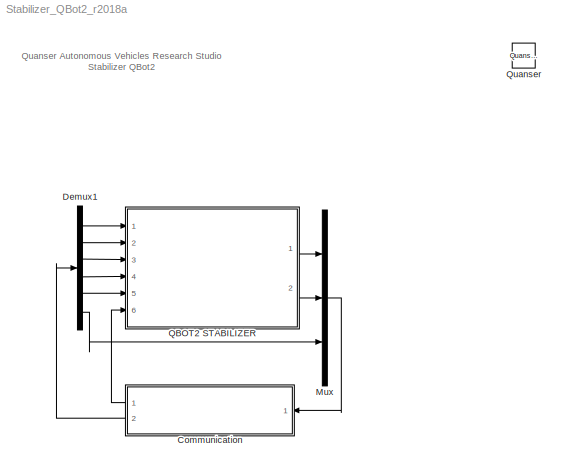
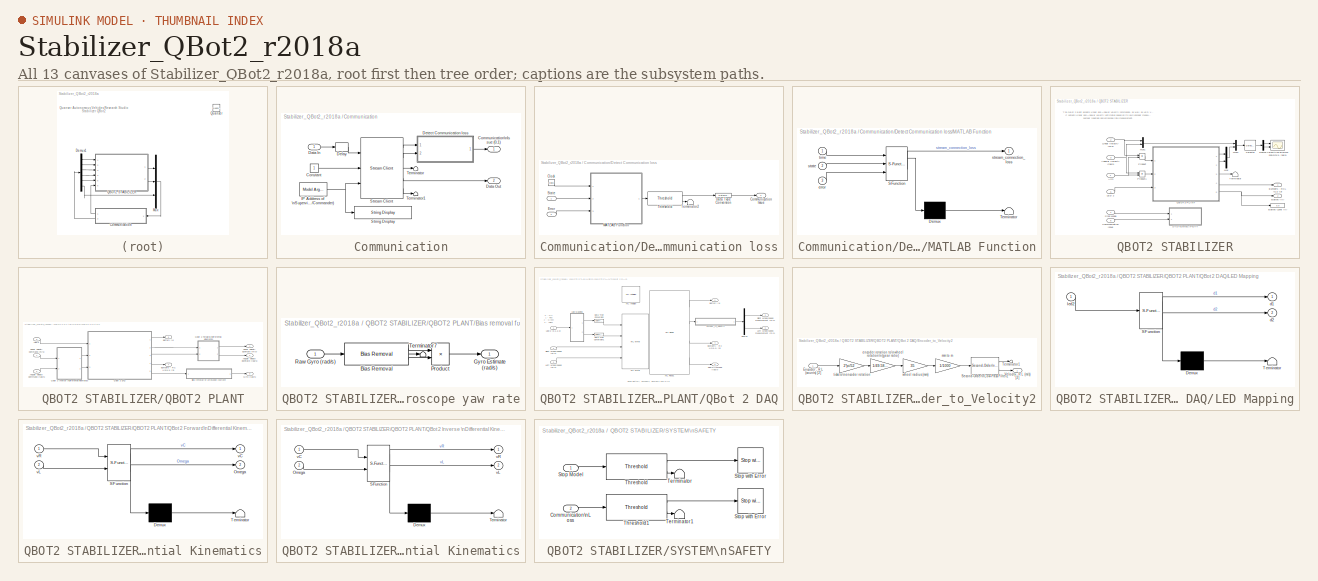
[diagram: thumbnail index - all 13 canvases of the model, root first then tree order]
MODEL Stabilizer_QBot2_r2018a
KIND model
BLOCK [SubSystem] Communication
  Ports = [1, 2]
  RequestExecContextInheritance = off
  SID = 394
BLOCK [Outport] Communication/Communication\nIssue (0,1)
  SID = 6540
  VectorParamsAs1DForOutWhenUnconnected = off
BLOCK [Constant] Communication/Constant
  SID = 2649
BLOCK [Inport] Communication/Data In
  SID = 6543
BLOCK [Outport] Communication/Data Out
  Port = 2
  SID = 6542
  VectorParamsAs1DForOutWhenUnconnected = off
BLOCK [Delay] Communication/Delay
  DelayLength = 1
  InputPortMap = u0
  Ports = [1, 1]
  SID = 404
BLOCK [SubSystem] Communication/Detect Communication loss
  Ports = [2, 1]
  RequestExecContextInheritance = off
  SID = 6556
BLOCK [Clock] Communication/Detect Communication loss/Clock
  SID = 6476
BLOCK [Outport] Communication/Detect Communication loss/Communication Issue
  SID = 6560
  VectorParamsAs1DForOutWhenUnconnected = off
BLOCK [DataTypeConversion] Communication/Detect Communication loss/Data Type Conversion
  RndMeth = Floor
  SID = 5201
  SaturateOnIntegerOverflow = off
BLOCK [Inport] Communication/Detect Communication loss/Error
  Port = 2
  SID = 6558
BLOCK [SubSystem] Communication/Detect Communication loss/MATLAB Function
  ErrorFcn = Stateflow.Translate.translate
  PermitHierarchicalResolution = ExplicitOnly
  Ports = [3, 1]
  RequestExecContextInheritance = off
  SFBlockType = MATLAB Function
  SID = 6473
  TreatAsAtomicUnit = on
BLOCK [Demux] Communication/Detect Communication loss/MATLAB Function/ Demux 
  Outputs = 1
  Ports = [1, 1]
  SID = 6473::35
BLOCK [S-Function] Communication/Detect Communication loss/MATLAB Function/ SFunction 
  EnableBusSupport = off
  FunctionName = sf_sfun
  PortCounts = [3 2]
  Ports = [3, 2]
  SFcnIsStateOwnerBlock = off
  SFunctionDeploymentMode = off
  SID = 6473::34
  Tag = Stateflow S-Function Stabilizer_QBot2_r2018a 3
BLOCK [Terminator] Communication/Detect Communication loss/MATLAB Function/ Terminator 
  SID = 6473::36
BLOCK [Inport] Communication/Detect Communication loss/MATLAB Function/error
  Port = 3
  SID = 6473::23
BLOCK [Inport] Communication/Detect Communication loss/MATLAB Function/state
  Port = 2
  SID = 6473::22
BLOCK [Outport] Communication/Detect Communication loss/MATLAB Function/stream_connection_loss
  SID = 6473::5
  VectorParamsAs1DForOutWhenUnconnected = off
BLOCK [Inport] Communication/Detect Communication loss/MATLAB Function/time
  SID = 6473::1
BLOCK [Inport] Communication/Detect Communication loss/State
  SID = 6557
BLOCK [Terminator] Communication/Detect Communication loss/Terminator2
  SID = 5193
BLOCK [Reference] Communication/Detect Communication loss/Threshold  REF=quarc_library/Discontinuities/Threshold
  Ports = [1, 2]
  RTWMemSecDataConstants = Inherit from model
  RTWMemSecDataInternal = Inherit from model
  RTWMemSecDataParameters = Inherit from model
  RTWMemSecFuncExecute = Inherit from model
  RTWMemSecFuncInitTerm = Inherit from model
  SID = 5195
  SourceBlock = quarc_library/Discontinuities/Threshold
  SourceProductName = QUARC Targets
  SourceType = Threshold
  duration = 0.1
  operator = >=
  param_src = Specify via dialog
  threshold = 0.5
BLOCK [Reference] Communication/IP Address of \nSupervisory Model\n(Mission Operator//Commander)  REF=quarc_library/Sources/Signals/Model Argument
  AttributesFormatString = (-%<argument_name>)
  MultiThreadCoSim = auto
  Ports = [0, 1]
  SID = 5177
  SourceBlock = quarc_library/Sources/Signals/Model Argument
  SourceProductName = QUARC Targets
  SourceType = Model Argument
  argument_name = URI_Host
  data_type = char
  data_type_mode = Specify via dialog
  default_value = 0
  has_value = on
  max_length = 80
  variable_size = off
BLOCK [Reference] Communication/Stream Client  REF=quarc_library/Communications/Basic/Stream Client
  MultiThreadCoSim = auto
  Ports = [3, 5]
  SID = 410
  SourceBlock = quarc_library/Communications/Basic/Stream Client
  SourceProductName = The database <userpath><path> is locked, or a table in the database is locked. (database is locked)
  SourceType = Stream Client
  active = off
  apply_uri_to_all_configs = on
  byte_order = little endian (Intel - LSB first)
  data_type = Inherited via back propagation
  default_value = zeros(1,6)
  implementation = Use blocking I/O in a separate thread
  max_dimensions = -1
  optimization = Minimum latency
  receive_buffer_size = 1460
  receive_dimensions = off
  receive_fifo_size = 1
  receive_options = Receive most recent data
  receive_priority = 0
  sample_time = qc_get_step_size
  send_buffer_size = 1460
  send_dimensions = off
  send_fifo_size = 1
  send_options = Send most recent data
  send_priority = 0
  type_expr = BusObject
  uri = tcpip://localhost:18999
  uri_source = External input port
BLOCK [Reference] Communication/String Display  REF=quarc_library/Strings/String Display
  MultiThreadCoSim = auto
  Ports = [1]
  SID = 5178
  SourceBlock = quarc_library/Strings/String Display
  SourceProductName = QUARC Targets
  SourceType = String Display
  alignment = center
  display_mode = Single line
  sample_time = -1
  use_new = off
BLOCK [Terminator] Communication/Terminator
  SID = 411
BLOCK [Terminator] Communication/Terminator1
  SID = 5205
BLOCK [Demux] Demux1
  Outputs = 6
  Ports = [1, 6]
  SID = 405
BLOCK [Mux] Mux
  DisplayOption = bar
  Inputs = 3
  Ports = [3, 1]
  SID = 7887
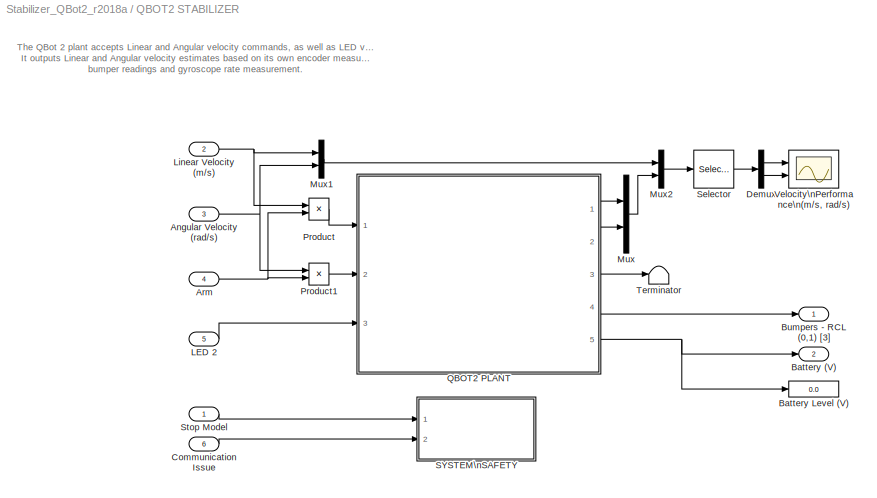
BLOCK [SubSystem] QBOT2 STABILIZER
  Ports = [6, 2]
  RequestExecContextInheritance = off
  SID = 7771
BLOCK [Inport] QBOT2 STABILIZER/Angular Velocity (rad//s)
  Port = 3
  SID = 7773
BLOCK [Inport] QBOT2 STABILIZER/Arm
  Port = 4
  SID = 7824
BLOCK [Outport] QBOT2 STABILIZER/Battery (V)
  Port = 2
  SID = 7819
  VectorParamsAs1DForOutWhenUnconnected = off
BLOCK [Display] QBOT2 STABILIZER/Battery Level (V)
  Ports = [1]
  SID = 7778
BLOCK [Outport] QBOT2 STABILIZER/Bumpers - RCL (0,1) [3]
  SID = 7817
  VectorParamsAs1DForOutWhenUnconnected = off
BLOCK [Inport] QBOT2 STABILIZER/Communication Issue
  Port = 6
  SID = 7822
BLOCK [Demux] QBOT2 STABILIZER/Demux
  Outputs = [2 2]
  Ports = [1, 2]
  SID = 7776
BLOCK [Inport] QBOT2 STABILIZER/LED 2
  Port = 5
  SID = 7775
BLOCK [Inport] QBOT2 STABILIZER/Linear Velocity (m//s)
  Port = 2
  SID = 7772
BLOCK [Mux] QBOT2 STABILIZER/Mux
  DisplayOption = bar
  Inputs = 2
  Ports = [2, 1]
  SID = 7882
BLOCK [Mux] QBOT2 STABILIZER/Mux1
  DisplayOption = bar
  Inputs = 2
  Ports = [2, 1]
  SID = 7780
BLOCK [Mux] QBOT2 STABILIZER/Mux2
  DisplayOption = bar
  Inputs = 2
  Ports = [2, 1]
  SID = 7781
BLOCK [Product] QBOT2 STABILIZER/Product
  Ports = [2, 1]
  SID = 7832
BLOCK [Product] QBOT2 STABILIZER/Product1
  Ports = [2, 1]
  SID = 7833
BLOCK [SubSystem] QBOT2 STABILIZER/QBOT2 PLANT
  Ports = [3, 5]
  RequestExecContextInheritance = off
  SID = 7782
BLOCK [Inport] QBOT2 STABILIZER/QBOT2 PLANT/Angular Velocity Command (rad//s)
  Port = 2
  SID = 7784
BLOCK [Outport] QBOT2 STABILIZER/QBOT2 PLANT/Angular Velocity Estimate (rad//s)
  Port = 2
  SID = 7849
  VectorParamsAs1DForOutWhenUnconnected = off
BLOCK [Outport] QBOT2 STABILIZER/QBOT2 PLANT/Battery (V)
  Port = 5
  SID = 7809
  VectorParamsAs1DForOutWhenUnconnected = off
BLOCK [SubSystem] QBOT2 STABILIZER/QBOT2 PLANT/Bias removal for gyroscope yaw rate
  Ports = [1, 1]
  RequestExecContextInheritance = off
  SID = 7869
BLOCK [Reference] QBOT2 STABILIZER/QBOT2 PLANT/Bias removal for gyroscope yaw rate/Bias Removal  REF=quarc_library/Discrete/Bias Removal
  Ports = [1, 3]
  RTWMemSecDataConstants = Inherit from model
  RTWMemSecDataInternal = Inherit from model
  RTWMemSecDataParameters = Inherit from model
  RTWMemSecFuncExecute = Inherit from model
  RTWMemSecFuncInitTerm = Inherit from model
  SID = 7787
  SourceBlock = quarc_library/Discrete/Bias Removal
  SourceProductName = QUARC Targets
  SourceType = Bias Removal
  end_time = 4
  sample_time = qc_get_step_size
  start_time = 3
  switch_id = 0
BLOCK [Outport] QBOT2 STABILIZER/QBOT2 PLANT/Bias removal for gyroscope yaw rate/Gyro Estimate (rad//s)
  SID = 7871
  VectorParamsAs1DForOutWhenUnconnected = off
BLOCK [Product] QBOT2 STABILIZER/QBOT2 PLANT/Bias removal for gyroscope yaw rate/Product
  Ports = [2, 1]
  RndMeth = Zero
  SID = 7805
BLOCK [Inport] QBOT2 STABILIZER/QBOT2 PLANT/Bias removal for gyroscope yaw rate/Raw Gyro (rad//s)
  SID = 7870
BLOCK [Terminator] QBOT2 STABILIZER/QBOT2 PLANT/Bias removal for gyroscope yaw rate/Terminator7
  SID = 7806
BLOCK [Outport] QBOT2 STABILIZER/QBOT2 PLANT/Bumpers - R C L\n(0,1) [3]
  Port = 4
  SID = 7810
  VectorParamsAs1DForOutWhenUnconnected = off
BLOCK [Outport] QBOT2 STABILIZER/QBOT2 PLANT/Gyro (rad//s)
  Port = 3
  SID = 7808
  VectorParamsAs1DForOutWhenUnconnected = off
BLOCK [Inport] QBOT2 STABILIZER/QBOT2 PLANT/LED 2
  Port = 3
  SID = 7786
BLOCK [Inport] QBOT2 STABILIZER/QBOT2 PLANT/Linear Velocity Command (m//s)
  SID = 7783
BLOCK [Outport] QBOT2 STABILIZER/QBOT2 PLANT/Linear Velocity Estimate (m//s)
  SID = 7807
  VectorParamsAs1DForOutWhenUnconnected = off
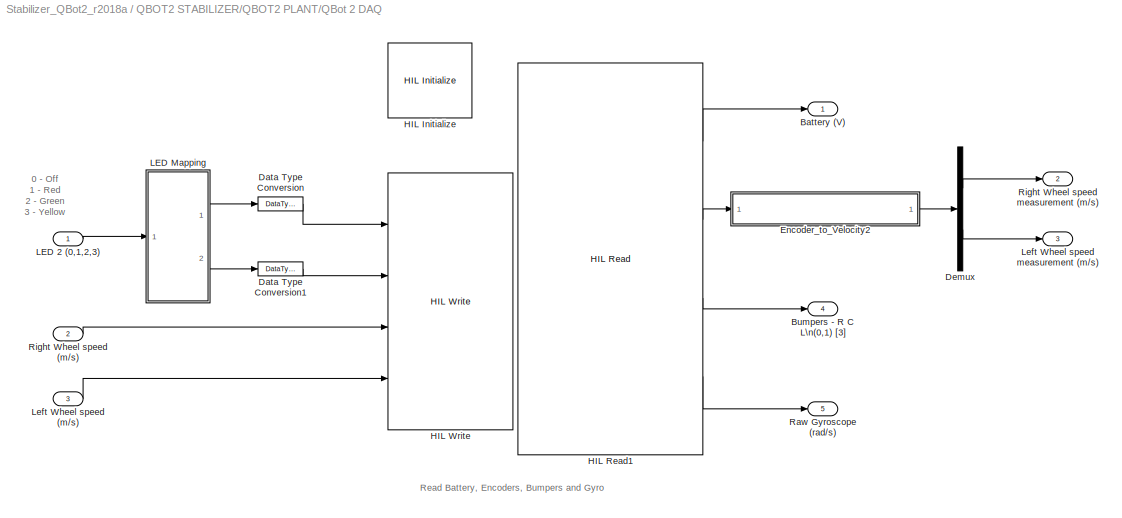
BLOCK [SubSystem] QBOT2 STABILIZER/QBOT2 PLANT/QBot 2 DAQ
  Ports = [3, 5]
  RequestExecContextInheritance = off
  SID = 7872
BLOCK [Outport] QBOT2 STABILIZER/QBOT2 PLANT/QBot 2 DAQ/Battery (V)
  SID = 7877
  VectorParamsAs1DForOutWhenUnconnected = off
BLOCK [Outport] QBOT2 STABILIZER/QBOT2 PLANT/QBot 2 DAQ/Bumpers - R C L\n(0,1) [3]
  Port = 4
  SID = 7880
  VectorParamsAs1DForOutWhenUnconnected = off
BLOCK [DataTypeConversion] QBOT2 STABILIZER/QBOT2 PLANT/QBot 2 DAQ/Data Type Conversion
  RndMeth = Floor
  SID = 7788
  SaturateOnIntegerOverflow = off
BLOCK [DataTypeConversion] QBOT2 STABILIZER/QBOT2 PLANT/QBot 2 DAQ/Data Type Conversion1
  RndMeth = Floor
  SID = 7789
  SaturateOnIntegerOverflow = off
BLOCK [Demux] QBOT2 STABILIZER/QBOT2 PLANT/QBot 2 DAQ/Demux
  Outputs = 2
  Ports = [1, 2]
  SID = 7848
BLOCK [SubSystem] QBOT2 STABILIZER/QBOT2 PLANT/QBot 2 DAQ/Encoder_to_Velocity2
  Ports = [1, 1]
  RequestExecContextInheritance = off
  SID = 7792
BLOCK [Gain] QBOT2 STABILIZER/QBOT2 PLANT/QBot 2 DAQ/Encoder_to_Velocity2/ encoder rotation to\nwheel rotation\n(gear ratio)
  Gain = 1/49.5833
  SID = 7794
BLOCK [Inport] QBOT2 STABILIZER/QBOT2 PLANT/QBot 2 DAQ/Encoder_to_Velocity2/Encoder - R L (counts) [2]
  SID = 7793
BLOCK [Reference] QBOT2 STABILIZER/QBOT2 PLANT/QBot 2 DAQ/Encoder_to_Velocity2/Second-Order\nLow-Pass Filter2  REF=quarc_library/Continuous/Second-Order\nLow-Pass Filter
  Ports = [1, 2]
  RTWMemSecDataConstants = Inherit from model
  RTWMemSecDataInternal = Inherit from model
  RTWMemSecDataParameters = Inherit from model
  RTWMemSecFuncExecute = Inherit from model
  RTWMemSecFuncInitTerm = Inherit from model
  SID = 7795
  SourceBlock = quarc_library/Continuous/Second-Order\nLow-Pass Filter
  SourceProductName = QUARC Targets
  SourceType = Second-Order Low-Pass Filter
  input_init = 0
  input_width = 10
  input_zeta = 1
  params_source = Internal (dialog parameters)
BLOCK [Terminator] QBOT2 STABILIZER/QBOT2 PLANT/QBot 2 DAQ/Encoder_to_Velocity2/Terminator1
  SID = 7796
BLOCK [Outport] QBOT2 STABILIZER/QBOT2 PLANT/QBot 2 DAQ/Encoder_to_Velocity2/Velocity - R L (m//s) [2]
  SID = 7800
  VectorParamsAs1DForOutWhenUnconnected = off
BLOCK [Gain] QBOT2 STABILIZER/QBOT2 PLANT/QBot 2 DAQ/Encoder_to_Velocity2/mm to m
  Gain = 1/1000
  SID = 7797
BLOCK [Gain] QBOT2 STABILIZER/QBOT2 PLANT/QBot 2 DAQ/Encoder_to_Velocity2/ticks to\nencoder rotation
  Gain = 2*pi/52
  SID = 7798
BLOCK [Gain] QBOT2 STABILIZER/QBOT2 PLANT/QBot 2 DAQ/Encoder_to_Velocity2/wheel radius (mm)
  Gain = 35
  SID = 7799
BLOCK [Reference] QBOT2 STABILIZER/QBOT2 PLANT/QBot 2 DAQ/HIL Initialize  REF=quarc_library/Data Acquisition/Generic/Configuration/HIL Initialize
  AttributesFormatString = %<object_name> (%<board_type>-%<board_number>)
  MultiThreadCoSim = auto
  Ports = []
  Priority = -99
  SID = 7801
  SourceBlock = quarc_library/Data Acquisition/Generic/Configuration/HIL Initialize
  SourceProductName = QUARC Targets
  SourceType = HIL Initialize
  UserData = DataTag1
  UserDataPersistent = on
  active = off
  analog_input_channels = [0:9]
  analog_input_configurations = 0
  analog_input_maximums = [5 5 5 5 16.5 3.3 3.3 3.3 3.3]
  analog_input_minimums = [0 0 0 0 0 0 0 0 0]
  analog_output_channels = []
  analog_output_maximums = []
  analog_output_minimums = []
  board_number = 0
  board_options = enc0_dir=0;enc0_filter=1;enc0_a=0;enc0_b=0;enc0_z=1;enc0_reload=0;enc1_dir=0;enc1_filter=1;enc1_a=0;enc1_b=0;enc1_z=1;enc1_reload=0;pwm0_immediate=0;pwm1_immediate=0;pwm2_immediate=0;pwm3_immediate=0;
  board_type = qbot2
  clock_modes = []
  digital_input_channels = []
  digital_output_channels = [9:12]
  digital_output_configuration = []
  encoder_channels = [0:3]
  encoder_filter_frequency = []
  exclusive = off
  final_analog_outputs = []
  final_digital_outputs = [0]
  final_other_outputs = [0 0 0 7]
  final_pwm_outputs = [0]
  hardware_clocks = []
  initial_analog_outputs = []
  initial_clock_frequencies = []
  initial_digital_outputs = [0]
  initial_encoder_counts = [0]
  initial_other_outputs = [0 0 0 7]
  initial_pwm_outputs = [0]
  object_name = HIL-1
  other_output_channels = [2000:2001 14000 16000]
  pwm_alignment = [0]
  pwm_channels = [0:3]
  pwm_configuration = [0]
  pwm_frequency = [20e6/1024]
  pwm_leading_deadband = [0]
  pwm_modes = [0]
  pwm_polarity = [1]
  pwm_trailing_deadband = [0]
  quadrature = [4]
  set_analog_input_params_at_start = off
  set_analog_input_params_at_switch_in = off
  set_analog_output_params_at_start = off
  set_analog_output_params_at_switch_in = off
  set_analog_outputs_at_start = off
  set_analog_outputs_at_switch_in = off
  set_analog_outputs_at_switch_out = off
  set_analog_outputs_at_terminate = off
  set_analog_outputs_on_watchdog = off
  set_clock_frequencies_at_start = off
  set_clock_frequencies_at_switch_in = off
  set_clock_params_at_start = off
  set_clock_params_at_switch_in = off
  set_digital_output_params_at_start = off
  set_digital_output_params_at_switch_in = off
  set_digital_outputs_at_start = on
  set_digital_outputs_at_switch_in = off
  set_digital_outputs_at_switch_out = off
  set_digital_outputs_at_terminate = on
  set_digital_outputs_on_watchdog = on
  set_encoder_counts_at_start = on
  set_encoder_counts_at_switch_in = off
  set_encoder_params_at_start = on
  set_encoder_params_at_switch_in = off
  set_other_outputs_at_start = on
  set_other_outputs_at_switch_in = off
  set_other_outputs_at_switch_out = off
  set_other_outputs_at_terminate = on
  set_other_outputs_on_watchdog = off
  set_pwm_outputs_at_start = on
  set_pwm_outputs_at_switch_in = off
  set_pwm_outputs_at_switch_out = off
  set_pwm_outputs_at_terminate = on
  set_pwm_outputs_on_watchdog = on
  set_pwm_params_at_start = on
  set_pwm_params_at_switch_in = off
  watchdog_analog_outputs = []
  watchdog_digital_outputs = [0]
  watchdog_other_outputs = []
  watchdog_pwm_outputs = [0]
BLOCK [Reference] QBOT2 STABILIZER/QBOT2 PLANT/QBot 2 DAQ/HIL Read1  REF=quarc_library/Data Acquisition/Generic/Immediate I//O/HIL Read
  AttributesFormatString = (%<object_name>)
  MultiThreadCoSim = auto
  Ports = [0, 4]
  SID = 7802
  SourceBlock = quarc_library/Data Acquisition/Generic/Immediate I//O/HIL Read
  SourceProductName = QUARC Targets
  SourceType = HIL Read
  UserData = DataTag2
  UserDataPersistent = on
  active = on
  analog_channels = [4]
  data_type_mode = Inherit via back propagation
  digital_channels = [8 9 10]
  digital_data_type = boolean
  encoder_channels = [2 3]
  encoder_data_type = double
  object_name = HIL-1
  other_channels = [1002]
  sample_time = qc_get_step_size
  vector_output = on
BLOCK [Reference] QBOT2 STABILIZER/QBOT2 PLANT/QBot 2 DAQ/HIL Write  REF=quarc_library/Data Acquisition/Generic/Immediate I//O/HIL Write
  AttributesFormatString = (%<object_name>)
  MultiThreadCoSim = auto
  Ports = [4]
  SID = 7803
  SourceBlock = quarc_library/Data Acquisition/Generic/Immediate I//O/HIL Write
  SourceProductName = QUARC Targets
  SourceType = HIL Write
  UserData = DataTag3
  UserDataPersistent = on
  active = on
  analog_channels = []
  digital_channels = [11:12]
  object_name = HIL-1
  other_channels = [2000:2001]
  pwm_channels = []
  sample_time = -1
  vector_input = off
BLOCK [Inport] QBOT2 STABILIZER/QBOT2 PLANT/QBot 2 DAQ/LED 2 (0,1,2,3)
  SID = 7874
BLOCK [SubSystem] QBOT2 STABILIZER/QBOT2 PLANT/QBot 2 DAQ/LED Mapping
  ErrorFcn = Stateflow.Translate.translate
  PermitHierarchicalResolution = ExplicitOnly
  Ports = [1, 2]
  RequestExecContextInheritance = off
  SFBlockType = MATLAB Function
  SID = 7804
  TreatAsAtomicUnit = on
BLOCK [Demux] QBOT2 STABILIZER/QBOT2 PLANT/QBot 2 DAQ/LED Mapping/ Demux 
  Outputs = 1
  Ports = [1, 1]
  SID = 7804::33
BLOCK [S-Function] QBOT2 STABILIZER/QBOT2 PLANT/QBot 2 DAQ/LED Mapping/ SFunction 
  EnableBusSupport = off
  FunctionName = sf_sfun
  PortCounts = [1 3]
  Ports = [1, 3]
  SFcnIsStateOwnerBlock = off
  SFunctionDeploymentMode = off
  SID = 7804::32
  Tag = Stateflow S-Function Stabilizer_QBot2_r2018a 1
BLOCK [Terminator] QBOT2 STABILIZER/QBOT2 PLANT/QBot 2 DAQ/LED Mapping/ Terminator 
  SID = 7804::34
BLOCK [Outport] QBOT2 STABILIZER/QBOT2 PLANT/QBot 2 DAQ/LED Mapping/d1
  SID = 7804::5
  VectorParamsAs1DForOutWhenUnconnected = off
BLOCK [Outport] QBOT2 STABILIZER/QBOT2 PLANT/QBot 2 DAQ/LED Mapping/d2
  Port = 2
  SID = 7804::23
  VectorParamsAs1DForOutWhenUnconnected = off
BLOCK [Inport] QBOT2 STABILIZER/QBOT2 PLANT/QBot 2 DAQ/LED Mapping/led2
  SID = 7804::22
BLOCK [Inport] QBOT2 STABILIZER/QBOT2 PLANT/QBot 2 DAQ/Left Wheel speed (m//s)
  Port = 3
  SID = 7876
BLOCK [Outport] QBOT2 STABILIZER/QBOT2 PLANT/QBot 2 DAQ/Left Wheel speed measurement (m//s)
  Port = 3
  SID = 7879
  VectorParamsAs1DForOutWhenUnconnected = off
BLOCK [Outport] QBOT2 STABILIZER/QBOT2 PLANT/QBot 2 DAQ/Raw Gyroscope (rad//s)
  Port = 5
  SID = 7881
  VectorParamsAs1DForOutWhenUnconnected = off
BLOCK [Inport] QBOT2 STABILIZER/QBOT2 PLANT/QBot 2 DAQ/Right Wheel speed (m//s)
  Port = 2
  SID = 7875
BLOCK [Outport] QBOT2 STABILIZER/QBOT2 PLANT/QBot 2 DAQ/Right Wheel speed measurement (m//s)
  Port = 2
  SID = 7878
  VectorParamsAs1DForOutWhenUnconnected = off
BLOCK [SubSystem] QBOT2 STABILIZER/QBOT2 PLANT/QBot 2 Forward\nDifferential Kinematics
  ErrorFcn = Stateflow.Translate.translate
  PermitHierarchicalResolution = ExplicitOnly
  Ports = [2, 2]
  RequestExecContextInheritance = off
  SFBlockType = MATLAB Function
  SID = 7812
  TreatAsAtomicUnit = on
BLOCK [Demux] QBOT2 STABILIZER/QBOT2 PLANT/QBot 2 Forward\nDifferential Kinematics/ Demux 
  Outputs = 1
  Ports = [1, 1]
  SID = 7812::62
BLOCK [S-Function] QBOT2 STABILIZER/QBOT2 PLANT/QBot 2 Forward\nDifferential Kinematics/ SFunction 
  EnableBusSupport = off
  FunctionName = sf_sfun
  PortCounts = [2 3]
  Ports = [2, 3]
  SFcnIsStateOwnerBlock = off
  SFunctionDeploymentMode = off
  SID = 7812::61
  Tag = Stateflow S-Function Stabilizer_QBot2_r2018a 2
BLOCK [Terminator] QBOT2 STABILIZER/QBOT2 PLANT/QBot 2 Forward\nDifferential Kinematics/ Terminator 
  SID = 7812::63
BLOCK [Outport] QBOT2 STABILIZER/QBOT2 PLANT/QBot 2 Forward\nDifferential Kinematics/Omega
  Port = 2
  SID = 7812::19
  VectorParamsAs1DForOutWhenUnconnected = off
BLOCK [Outport] QBOT2 STABILIZER/QBOT2 PLANT/QBot 2 Forward\nDifferential Kinematics/vC
  SID = 7812::5
  VectorParamsAs1DForOutWhenUnconnected = off
BLOCK [Inport] QBOT2 STABILIZER/QBOT2 PLANT/QBot 2 Forward\nDifferential Kinematics/vL
  Port = 2
  SID = 7812::1
BLOCK [Inport] QBOT2 STABILIZER/QBOT2 PLANT/QBot 2 Forward\nDifferential Kinematics/vR
  SID = 7812::18
BLOCK [SubSystem] QBOT2 STABILIZER/QBOT2 PLANT/QBot 2 Inverse \nDifferential Kinematics
  ErrorFcn = Stateflow.Translate.translate
  PermitHierarchicalResolution = ExplicitOnly
  Ports = [2, 2]
  RequestExecContextInheritance = off
  SFBlockType = MATLAB Function
  SID = 7813
  TreatAsAtomicUnit = on
BLOCK [Demux] QBOT2 STABILIZER/QBOT2 PLANT/QBot 2 Inverse \nDifferential Kinematics/ Demux 
  Outputs = 1
  Ports = [1, 1]
  SID = 7813::61
BLOCK [S-Function] QBOT2 STABILIZER/QBOT2 PLANT/QBot 2 Inverse \nDifferential Kinematics/ SFunction 
  EnableBusSupport = off
  FunctionName = sf_sfun
  PortCounts = [2 3]
  Ports = [2, 3]
  SFcnIsStateOwnerBlock = off
  SFunctionDeploymentMode = off
  SID = 7813::60
  Tag = Stateflow S-Function Stabilizer_QBot2_r2018a 10
BLOCK [Terminator] QBOT2 STABILIZER/QBOT2 PLANT/QBot 2 Inverse \nDifferential Kinematics/ Terminator 
  SID = 7813::62
BLOCK [Inport] QBOT2 STABILIZER/QBOT2 PLANT/QBot 2 Inverse \nDifferential Kinematics/Omega
  Port = 2
  SID = 7813::23
BLOCK [Inport] QBOT2 STABILIZER/QBOT2 PLANT/QBot 2 Inverse \nDifferential Kinematics/vC
  SID = 7813::20
BLOCK [Outport] QBOT2 STABILIZER/QBOT2 PLANT/QBot 2 Inverse \nDifferential Kinematics/vL
  Port = 2
  SID = 7813::22
  VectorParamsAs1DForOutWhenUnconnected = off
BLOCK [Outport] QBOT2 STABILIZER/QBOT2 PLANT/QBot 2 Inverse \nDifferential Kinematics/vR
  SID = 7813::21
  VectorParamsAs1DForOutWhenUnconnected = off
BLOCK [SubSystem] QBOT2 STABILIZER/SYSTEM\nSAFETY
  Ports = [2]
  RequestExecContextInheritance = off
  SID = 7861
BLOCK [Inport] QBOT2 STABILIZER/SYSTEM\nSAFETY/Communication\nLoss
  Port = 2
  SID = 7863
BLOCK [Inport] QBOT2 STABILIZER/SYSTEM\nSAFETY/Stop Model
  SID = 7862
BLOCK [Reference] QBOT2 STABILIZER/SYSTEM\nSAFETY/Stop with Error  REF=quarc_library/Sinks/Error Handling/Stop with Error
  AttributesFormatString = \"%<message>\"
  MultiThreadCoSim = auto
  Ports = [1]
  SID = 7829
  SourceBlock = quarc_library/Sinks/Error Handling/Stop with Error
  SourceProductName = QUARC Targets
  SourceType = Stop with Error
  message = QBot 2 Stabilizer: Operator Stopped Model
  message_type = Fixed error message
BLOCK [Reference] QBOT2 STABILIZER/SYSTEM\nSAFETY/Stop with Error   REF=quarc_library/Sinks/Error Handling/Stop with Error
  AttributesFormatString = \"%<message>\"
  MultiThreadCoSim = auto
  Ports = [1]
  SID = 7836
  SourceBlock = quarc_library/Sinks/Error Handling/Stop with Error
  SourceProductName = QUARC Targets
  SourceType = Stop with Error
  message = QBot 2 Stabilizer: Communication Issue with Operator
  message_type = Fixed error message
BLOCK [Terminator] QBOT2 STABILIZER/SYSTEM\nSAFETY/Terminator
  SID = 7830
BLOCK [Terminator] QBOT2 STABILIZER/SYSTEM\nSAFETY/Terminator1
  SID = 7835
BLOCK [Reference] QBOT2 STABILIZER/SYSTEM\nSAFETY/Threshold  REF=quarc_library/Discontinuities/Threshold
  Ports = [1, 2]
  RTWMemSecDataConstants = Inherit from model
  RTWMemSecDataInternal = Inherit from model
  RTWMemSecDataParameters = Inherit from model
  RTWMemSecFuncExecute = Inherit from model
  RTWMemSecFuncInitTerm = Inherit from model
  SID = 7828
  SourceBlock = quarc_library/Discontinuities/Threshold
  SourceProductName = QUARC Targets
  SourceType = Threshold
  duration = 2
  operator = >
  param_src = Specify via dialog
  threshold = 0.5
BLOCK [Reference] QBOT2 STABILIZER/SYSTEM\nSAFETY/Threshold1  REF=quarc_library/Discontinuities/Threshold
  Ports = [1, 2]
  RTWMemSecDataConstants = Inherit from model
  RTWMemSecDataInternal = Inherit from model
  RTWMemSecDataParameters = Inherit from model
  RTWMemSecFuncExecute = Inherit from model
  RTWMemSecFuncInitTerm = Inherit from model
  SID = 7834
  SourceBlock = quarc_library/Discontinuities/Threshold
  SourceProductName = QUARC Targets
  SourceType = Threshold
  duration = 3
  operator = >
  param_src = Specify via dialog
  threshold = 0.5
BLOCK [Selector] QBOT2 STABILIZER/Selector
  IndexOptions = Index vector (dialog)
  Indices = [1 3 2 4]
  InputPortWidth = 4
  OutputSizes = 1
  Ports = [1, 1]
  SID = 7815
BLOCK [Inport] QBOT2 STABILIZER/Stop Model
  SID = 7823
BLOCK [Terminator] QBOT2 STABILIZER/Terminator
  SID = 7886
BLOCK [Scope] QBOT2 STABILIZER/Velocity\nPerformance\n(m//s, rad//s)
  Floating = off
  NumInputPorts = 2
  Ports = [2]
  SID = 7816
  ScopeSpecificationString = Simulink.scopes.TimeScopeBlockCfg('CurrentConfiguration', extmgr.ConfigurationSet(extmgr.Configuration('Core','General UI',true),extmgr.Configuration('Core','Source UI',true),extmgr.Configuration('Sources','WiredSimulink',true),extmgr.Configuration('Visuals','Time Domain',true,'SerializedDisplays',{struct('MinYLimReal','-0.23352','MaxYLimReal','0.68595','YLabelReal','Speed (m/s)','MinYLimMag','0.0...<+2030ch>
BLOCK [Reference] Quanser  REF=quarc_library/Logos/Quanser
  Ports = []
  RTWMemSecDataConstants = Inherit from model
  RTWMemSecDataInternal = Inherit from model
  RTWMemSecDataParameters = Inherit from model
  RTWMemSecFuncExecute = Inherit from model
  RTWMemSecFuncInitTerm = Inherit from model
  SID = 7864
  SourceBlock = quarc_library/Logos/Quanser
  SourceProductName = QUARC Targets
  SourceType = Powered by Quanser
ANNOTATION (root): \n \n Quanser Autonomous Vehicles Research Studio Stabilizer QBot2
ANNOTATION (root): \n \n \n \n Place the QBot 2 in the workspace and turn it ON. \n \n Open the Model Configuration Properties under the Simulation menu. \n \n Under the Code Generation > Interface tab, enter the following MEX-file arguments '-w -d /tmp -uri %u -URI_Host tcpip://192.168.2. H :18000','tcpip:// 192.168.2.X :17001' where 192.168.2.H is the IP of the ground control station PC and 192.168.2.X is the IP a...<+741ch>
ANNOTATION QBOT2 STABILIZER: The QBot 2 plant accepts Linear and Angular velocity commands, as well as LED values for a user-programmable LED (LED 2). \nIt outputs Linear and Angular velocity estimates based on its own encoder measurements of the wheel velocities, its battery level, \nbumper readings and gyroscope rate measurement. \n
ANNOTATION QBOT2 STABILIZER/QBOT2 PLANT/QBot 2 DAQ: 0 - Off\n1 - Red\n2 - Green\n3 - Yellow
ANNOTATION QBOT2 STABILIZER/QBOT2 PLANT/QBot 2 DAQ: Read Battery, Encoders, Bumpers and Gyro
LINE Communication/Constant:1 -> Communication/Stream Client:2
LINE Communication/Data In:1 -> Communication/Delay:1
LINE Communication/Delay:1 -> Communication/Stream Client:1
LINE Communication/Detect Communication loss/Clock:1 -> Communication/Detect Communication loss/MATLAB Function:1
LINE Communication/Detect Communication loss/Data Type Conversion:1 -> Communication/Detect Communication loss/Communication Issue:1
LINE Communication/Detect Communication loss/Error:1 -> Communication/Detect Communication loss/MATLAB Function:3
LINE Communication/Detect Communication loss/MATLAB Function/ Demux :1 -> Communication/Detect Communication loss/MATLAB Function/ Terminator :1
LINE Communication/Detect Communication loss/MATLAB Function/ SFunction :1 -> Communication/Detect Communication loss/MATLAB Function/ Demux :1
LINE Communication/Detect Communication loss/MATLAB Function/ SFunction :2 -> Communication/Detect Communication loss/MATLAB Function/stream_connection_loss:1
LINE Communication/Detect Communication loss/MATLAB Function/error:1 -> Communication/Detect Communication loss/MATLAB Function/ SFunction :3
LINE Communication/Detect Communication loss/MATLAB Function/state:1 -> Communication/Detect Communication loss/MATLAB Function/ SFunction :2
LINE Communication/Detect Communication loss/MATLAB Function/time:1 -> Communication/Detect Communication loss/MATLAB Function/ SFunction :1
LINE Communication/Detect Communication loss/MATLAB Function:1 -> Communication/Detect Communication loss/Threshold:1
LINE Communication/Detect Communication loss/State:1 -> Communication/Detect Communication loss/MATLAB Function:2
LINE Communication/Detect Communication loss/Threshold:1 -> Communication/Detect Communication loss/Data Type Conversion:1
LINE Communication/Detect Communication loss/Threshold:2 -> Communication/Detect Communication loss/Terminator2:1
LINE Communication/Detect Communication loss:1 -> Communication/Communication\nIssue (0,1):1
NET Communication/IP Address of \nSupervisory Model\n(Mission Operator//Commander):1 -> Communication/Stream Client:3, Communication/String Display:1
LINE Communication/Stream Client:1 -> Communication/Detect Communication loss:1
LINE Communication/Stream Client:2 -> Communication/Detect Communication loss:2
LINE Communication/Stream Client:3 -> Communication/Terminator:1
LINE Communication/Stream Client:4 -> Communication/Data Out:1
LINE Communication/Stream Client:5 -> Communication/Terminator1:1
LINE Communication:1 -> QBOT2 STABILIZER:6
LINE Communication:2 -> Demux1:1
LINE Demux1:1 -> QBOT2 STABILIZER:1
LINE Demux1:2 -> QBOT2 STABILIZER:2
LINE Demux1:3 -> QBOT2 STABILIZER:3
LINE Demux1:4 -> QBOT2 STABILIZER:4
LINE Demux1:5 -> QBOT2 STABILIZER:5
LINE Demux1:6 -> Mux:3
LINE Mux:1 -> Communication:1
NET QBOT2 STABILIZER/Angular Velocity (rad//s):1 -> QBOT2 STABILIZER/Mux1:2, QBOT2 STABILIZER/Product1:1
NET QBOT2 STABILIZER/Arm:1 -> QBOT2 STABILIZER/Product1:2, QBOT2 STABILIZER/Product:2
LINE QBOT2 STABILIZER/Communication Issue:1 -> QBOT2 STABILIZER/SYSTEM\nSAFETY:2
LINE QBOT2 STABILIZER/Demux:1 -> QBOT2 STABILIZER/Velocity\nPerformance\n(m//s, rad//s):1
LINE QBOT2 STABILIZER/Demux:2 -> QBOT2 STABILIZER/Velocity\nPerformance\n(m//s, rad//s):2
LINE QBOT2 STABILIZER/LED 2:1 -> QBOT2 STABILIZER/QBOT2 PLANT:3
NET QBOT2 STABILIZER/Linear Velocity (m//s):1 -> QBOT2 STABILIZER/Mux1:1, QBOT2 STABILIZER/Product:1
LINE QBOT2 STABILIZER/Mux1:1 -> QBOT2 STABILIZER/Mux2:1
LINE QBOT2 STABILIZER/Mux2:1 -> QBOT2 STABILIZER/Selector:1
LINE QBOT2 STABILIZER/Mux:1 -> QBOT2 STABILIZER/Mux2:2
LINE QBOT2 STABILIZER/Product1:1 -> QBOT2 STABILIZER/QBOT2 PLANT:2
LINE QBOT2 STABILIZER/Product:1 -> QBOT2 STABILIZER/QBOT2 PLANT:1
LINE QBOT2 STABILIZER/QBOT2 PLANT/Angular Velocity Command (rad//s):1 -> QBOT2 STABILIZER/QBOT2 PLANT/QBot 2 Inverse \nDifferential Kinematics:2
LINE QBOT2 STABILIZER/QBOT2 PLANT/Bias removal for gyroscope yaw rate/Bias Removal:1 -> QBOT2 STABILIZER/QBOT2 PLANT/Bias removal for gyroscope yaw rate/Product:1
LINE QBOT2 STABILIZER/QBOT2 PLANT/Bias removal for gyroscope yaw rate/Bias Removal:2 -> QBOT2 STABILIZER/QBOT2 PLANT/Bias removal for gyroscope yaw rate/Terminator7:1
LINE QBOT2 STABILIZER/QBOT2 PLANT/Bias removal for gyroscope yaw rate/Bias Removal:3 -> QBOT2 STABILIZER/QBOT2 PLANT/Bias removal for gyroscope yaw rate/Product:2
LINE QBOT2 STABILIZER/QBOT2 PLANT/Bias removal for gyroscope yaw rate/Product:1 -> QBOT2 STABILIZER/QBOT2 PLANT/Bias removal for gyroscope yaw rate/Gyro Estimate (rad//s):1
LINE QBOT2 STABILIZER/QBOT2 PLANT/Bias removal for gyroscope yaw rate/Raw Gyro (rad//s):1 -> QBOT2 STABILIZER/QBOT2 PLANT/Bias removal for gyroscope yaw rate/Bias Removal:1
LINE QBOT2 STABILIZER/QBOT2 PLANT/Bias removal for gyroscope yaw rate:1 -> QBOT2 STABILIZER/QBOT2 PLANT/Gyro (rad//s):1
LINE QBOT2 STABILIZER/QBOT2 PLANT/LED 2:1 -> QBOT2 STABILIZER/QBOT2 PLANT/QBot 2 DAQ:1
LINE QBOT2 STABILIZER/QBOT2 PLANT/Linear Velocity Command (m//s):1 -> QBOT2 STABILIZER/QBOT2 PLANT/QBot 2 Inverse \nDifferential Kinematics:1
LINE QBOT2 STABILIZER/QBOT2 PLANT/QBot 2 DAQ/Data Type Conversion1:1 -> QBOT2 STABILIZER/QBOT2 PLANT/QBot 2 DAQ/HIL Write:2
LINE QBOT2 STABILIZER/QBOT2 PLANT/QBot 2 DAQ/Data Type Conversion:1 -> QBOT2 STABILIZER/QBOT2 PLANT/QBot 2 DAQ/HIL Write:1
LINE QBOT2 STABILIZER/QBOT2 PLANT/QBot 2 DAQ/Demux:1 -> QBOT2 STABILIZER/QBOT2 PLANT/QBot 2 DAQ/Right Wheel speed measurement (m//s):1
LINE QBOT2 STABILIZER/QBOT2 PLANT/QBot 2 DAQ/Demux:2 -> QBOT2 STABILIZER/QBOT2 PLANT/QBot 2 DAQ/Left Wheel speed measurement (m//s):1
LINE QBOT2 STABILIZER/QBOT2 PLANT/QBot 2 DAQ/Encoder_to_Velocity2/ encoder rotation to\nwheel rotation\n(gear ratio):1 -> QBOT2 STABILIZER/QBOT2 PLANT/QBot 2 DAQ/Encoder_to_Velocity2/wheel radius (mm):1
LINE QBOT2 STABILIZER/QBOT2 PLANT/QBot 2 DAQ/Encoder_to_Velocity2/Encoder - R L (counts) [2]:1 -> QBOT2 STABILIZER/QBOT2 PLANT/QBot 2 DAQ/Encoder_to_Velocity2/ticks to\nencoder rotation:1
LINE QBOT2 STABILIZER/QBOT2 PLANT/QBot 2 DAQ/Encoder_to_Velocity2/Second-Order\nLow-Pass Filter2:1 -> QBOT2 STABILIZER/QBOT2 PLANT/QBot 2 DAQ/Encoder_to_Velocity2/Terminator1:1
LINE QBOT2 STABILIZER/QBOT2 PLANT/QBot 2 DAQ/Encoder_to_Velocity2/Second-Order\nLow-Pass Filter2:2 -> QBOT2 STABILIZER/QBOT2 PLANT/QBot 2 DAQ/Encoder_to_Velocity2/Velocity - R L (m//s) [2]:1
LINE QBOT2 STABILIZER/QBOT2 PLANT/QBot 2 DAQ/Encoder_to_Velocity2/mm to m:1 -> QBOT2 STABILIZER/QBOT2 PLANT/QBot 2 DAQ/Encoder_to_Velocity2/Second-Order\nLow-Pass Filter2:1
LINE QBOT2 STABILIZER/QBOT2 PLANT/QBot 2 DAQ/Encoder_to_Velocity2/ticks to\nencoder rotation:1 -> QBOT2 STABILIZER/QBOT2 PLANT/QBot 2 DAQ/Encoder_to_Velocity2/ encoder rotation to\nwheel rotation\n(gear ratio):1
LINE QBOT2 STABILIZER/QBOT2 PLANT/QBot 2 DAQ/Encoder_to_Velocity2/wheel radius (mm):1 -> QBOT2 STABILIZER/QBOT2 PLANT/QBot 2 DAQ/Encoder_to_Velocity2/mm to m:1
LINE QBOT2 STABILIZER/QBOT2 PLANT/QBot 2 DAQ/Encoder_to_Velocity2:1 -> QBOT2 STABILIZER/QBOT2 PLANT/QBot 2 DAQ/Demux:1
LINE QBOT2 STABILIZER/QBOT2 PLANT/QBot 2 DAQ/HIL Read1:1 -> QBOT2 STABILIZER/QBOT2 PLANT/QBot 2 DAQ/Battery (V):1
LINE QBOT2 STABILIZER/QBOT2 PLANT/QBot 2 DAQ/HIL Read1:2 -> QBOT2 STABILIZER/QBOT2 PLANT/QBot 2 DAQ/Encoder_to_Velocity2:1
LINE QBOT2 STABILIZER/QBOT2 PLANT/QBot 2 DAQ/HIL Read1:3 -> QBOT2 STABILIZER/QBOT2 PLANT/QBot 2 DAQ/Bumpers - R C L\n(0,1) [3]:1
LINE QBOT2 STABILIZER/QBOT2 PLANT/QBot 2 DAQ/HIL Read1:4 -> QBOT2 STABILIZER/QBOT2 PLANT/QBot 2 DAQ/Raw Gyroscope (rad//s):1
LINE QBOT2 STABILIZER/QBOT2 PLANT/QBot 2 DAQ/LED 2 (0,1,2,3):1 -> QBOT2 STABILIZER/QBOT2 PLANT/QBot 2 DAQ/LED Mapping:1
LINE QBOT2 STABILIZER/QBOT2 PLANT/QBot 2 DAQ/LED Mapping/ Demux :1 -> QBOT2 STABILIZER/QBOT2 PLANT/QBot 2 DAQ/LED Mapping/ Terminator :1
LINE QBOT2 STABILIZER/QBOT2 PLANT/QBot 2 DAQ/LED Mapping/ SFunction :1 -> QBOT2 STABILIZER/QBOT2 PLANT/QBot 2 DAQ/LED Mapping/ Demux :1
LINE QBOT2 STABILIZER/QBOT2 PLANT/QBot 2 DAQ/LED Mapping/ SFunction :2 -> QBOT2 STABILIZER/QBOT2 PLANT/QBot 2 DAQ/LED Mapping/d1:1
LINE QBOT2 STABILIZER/QBOT2 PLANT/QBot 2 DAQ/LED Mapping/ SFunction :3 -> QBOT2 STABILIZER/QBOT2 PLANT/QBot 2 DAQ/LED Mapping/d2:1
LINE QBOT2 STABILIZER/QBOT2 PLANT/QBot 2 DAQ/LED Mapping/led2:1 -> QBOT2 STABILIZER/QBOT2 PLANT/QBot 2 DAQ/LED Mapping/ SFunction :1
LINE QBOT2 STABILIZER/QBOT2 PLANT/QBot 2 DAQ/LED Mapping:1 -> QBOT2 STABILIZER/QBOT2 PLANT/QBot 2 DAQ/Data Type Conversion:1
LINE QBOT2 STABILIZER/QBOT2 PLANT/QBot 2 DAQ/LED Mapping:2 -> QBOT2 STABILIZER/QBOT2 PLANT/QBot 2 DAQ/Data Type Conversion1:1
LINE QBOT2 STABILIZER/QBOT2 PLANT/QBot 2 DAQ/Left Wheel speed (m//s):1 -> QBOT2 STABILIZER/QBOT2 PLANT/QBot 2 DAQ/HIL Write:4
LINE QBOT2 STABILIZER/QBOT2 PLANT/QBot 2 DAQ/Right Wheel speed (m//s):1 -> QBOT2 STABILIZER/QBOT2 PLANT/QBot 2 DAQ/HIL Write:3
LINE QBOT2 STABILIZER/QBOT2 PLANT/QBot 2 DAQ:1 -> QBOT2 STABILIZER/QBOT2 PLANT/Battery (V):1
LINE QBOT2 STABILIZER/QBOT2 PLANT/QBot 2 DAQ:2 -> QBOT2 STABILIZER/QBOT2 PLANT/QBot 2 Forward\nDifferential Kinematics:1
LINE QBOT2 STABILIZER/QBOT2 PLANT/QBot 2 DAQ:3 -> QBOT2 STABILIZER/QBOT2 PLANT/QBot 2 Forward\nDifferential Kinematics:2
LINE QBOT2 STABILIZER/QBOT2 PLANT/QBot 2 DAQ:4 -> QBOT2 STABILIZER/QBOT2 PLANT/Bumpers - R C L\n(0,1) [3]:1
LINE QBOT2 STABILIZER/QBOT2 PLANT/QBot 2 DAQ:5 -> QBOT2 STABILIZER/QBOT2 PLANT/Bias removal for gyroscope yaw rate:1
LINE QBOT2 STABILIZER/QBOT2 PLANT/QBot 2 Forward\nDifferential Kinematics/ Demux :1 -> QBOT2 STABILIZER/QBOT2 PLANT/QBot 2 Forward\nDifferential Kinematics/ Terminator :1
LINE QBOT2 STABILIZER/QBOT2 PLANT/QBot 2 Forward\nDifferential Kinematics/ SFunction :1 -> QBOT2 STABILIZER/QBOT2 PLANT/QBot 2 Forward\nDifferential Kinematics/ Demux :1
LINE QBOT2 STABILIZER/QBOT2 PLANT/QBot 2 Forward\nDifferential Kinematics/ SFunction :2 -> QBOT2 STABILIZER/QBOT2 PLANT/QBot 2 Forward\nDifferential Kinematics/vC:1
LINE QBOT2 STABILIZER/QBOT2 PLANT/QBot 2 Forward\nDifferential Kinematics/ SFunction :3 -> QBOT2 STABILIZER/QBOT2 PLANT/QBot 2 Forward\nDifferential Kinematics/Omega:1
LINE QBOT2 STABILIZER/QBOT2 PLANT/QBot 2 Forward\nDifferential Kinematics/vL:1 -> QBOT2 STABILIZER/QBOT2 PLANT/QBot 2 Forward\nDifferential Kinematics/ SFunction :2
LINE QBOT2 STABILIZER/QBOT2 PLANT/QBot 2 Forward\nDifferential Kinematics/vR:1 -> QBOT2 STABILIZER/QBOT2 PLANT/QBot 2 Forward\nDifferential Kinematics/ SFunction :1
LINE QBOT2 STABILIZER/QBOT2 PLANT/QBot 2 Forward\nDifferential Kinematics:1 -> QBOT2 STABILIZER/QBOT2 PLANT/Linear Velocity Estimate (m//s):1
LINE QBOT2 STABILIZER/QBOT2 PLANT/QBot 2 Forward\nDifferential Kinematics:2 -> QBOT2 STABILIZER/QBOT2 PLANT/Angular Velocity Estimate (rad//s):1
LINE QBOT2 STABILIZER/QBOT2 PLANT/QBot 2 Inverse \nDifferential Kinematics/ Demux :1 -> QBOT2 STABILIZER/QBOT2 PLANT/QBot 2 Inverse \nDifferential Kinematics/ Terminator :1
LINE QBOT2 STABILIZER/QBOT2 PLANT/QBot 2 Inverse \nDifferential Kinematics/ SFunction :1 -> QBOT2 STABILIZER/QBOT2 PLANT/QBot 2 Inverse \nDifferential Kinematics/ Demux :1
LINE QBOT2 STABILIZER/QBOT2 PLANT/QBot 2 Inverse \nDifferential Kinematics/ SFunction :2 -> QBOT2 STABILIZER/QBOT2 PLANT/QBot 2 Inverse \nDifferential Kinematics/vR:1
LINE QBOT2 STABILIZER/QBOT2 PLANT/QBot 2 Inverse \nDifferential Kinematics/ SFunction :3 -> QBOT2 STABILIZER/QBOT2 PLANT/QBot 2 Inverse \nDifferential Kinematics/vL:1
LINE QBOT2 STABILIZER/QBOT2 PLANT/QBot 2 Inverse \nDifferential Kinematics/Omega:1 -> QBOT2 STABILIZER/QBOT2 PLANT/QBot 2 Inverse \nDifferential Kinematics/ SFunction :2
LINE QBOT2 STABILIZER/QBOT2 PLANT/QBot 2 Inverse \nDifferential Kinematics/vC:1 -> QBOT2 STABILIZER/QBOT2 PLANT/QBot 2 Inverse \nDifferential Kinematics/ SFunction :1
LINE QBOT2 STABILIZER/QBOT2 PLANT/QBot 2 Inverse \nDifferential Kinematics:1 -> QBOT2 STABILIZER/QBOT2 PLANT/QBot 2 DAQ:2
LINE QBOT2 STABILIZER/QBOT2 PLANT/QBot 2 Inverse \nDifferential Kinematics:2 -> QBOT2 STABILIZER/QBOT2 PLANT/QBot 2 DAQ:3
LINE QBOT2 STABILIZER/QBOT2 PLANT:1 -> QBOT2 STABILIZER/Mux:1
LINE QBOT2 STABILIZER/QBOT2 PLANT:2 -> QBOT2 STABILIZER/Mux:2
LINE QBOT2 STABILIZER/QBOT2 PLANT:3 -> QBOT2 STABILIZER/Terminator:1
LINE QBOT2 STABILIZER/QBOT2 PLANT:4 -> QBOT2 STABILIZER/Bumpers - RCL (0,1) [3]:1
NET QBOT2 STABILIZER/QBOT2 PLANT:5 -> QBOT2 STABILIZER/Battery (V):1, QBOT2 STABILIZER/Battery Level (V):1
LINE QBOT2 STABILIZER/SYSTEM\nSAFETY/Communication\nLoss:1 -> QBOT2 STABILIZER/SYSTEM\nSAFETY/Threshold1:1
LINE QBOT2 STABILIZER/SYSTEM\nSAFETY/Stop Model:1 -> QBOT2 STABILIZER/SYSTEM\nSAFETY/Threshold:1
LINE QBOT2 STABILIZER/SYSTEM\nSAFETY/Threshold1:1 -> QBOT2 STABILIZER/SYSTEM\nSAFETY/Stop with Error :1
LINE QBOT2 STABILIZER/SYSTEM\nSAFETY/Threshold1:2 -> QBOT2 STABILIZER/SYSTEM\nSAFETY/Terminator1:1
LINE QBOT2 STABILIZER/SYSTEM\nSAFETY/Threshold:1 -> QBOT2 STABILIZER/SYSTEM\nSAFETY/Stop with Error:1
LINE QBOT2 STABILIZER/SYSTEM\nSAFETY/Threshold:2 -> QBOT2 STABILIZER/SYSTEM\nSAFETY/Terminator:1
LINE QBOT2 STABILIZER/Selector:1 -> QBOT2 STABILIZER/Demux:1
LINE QBOT2 STABILIZER/Stop Model:1 -> QBOT2 STABILIZER/SYSTEM\nSAFETY:1
LINE QBOT2 STABILIZER:1 -> Mux:1
LINE QBOT2 STABILIZER:2 -> Mux:2
note: NET lines group one-source signal fan-out (src -> all destinations, sorted); 1:1 wires keep LINE
CHART QBOT2 STABILIZER/QBOT2 PLANT/QBot 2 DAQ/LED Mapping states=1 transitions=1
  STATE_LABEL 'eML_blk_kernel()'
CHART QBOT2 STABILIZER/QBOT2 PLANT/QBot 2 Forward\nDifferential Kinematics states=1 transitions=1
  STATE_LABEL 'eML_blk_kernel()'
CHART Communication/Detect Communication loss/MATLAB Function states=1 transitions=1
  STATE_LABEL 'eML_blk_kernel()'
CHART QBOT2 STABILIZER/QBOT2 PLANT/QBot 2 Inverse \nDifferential Kinematics states=1 transitions=1
  STATE_LABEL 'eML_blk_kernel()'
note: 1 file-system path scrubbed to <path> (not preserved elsewhere — flat text is the only slx artifact)
